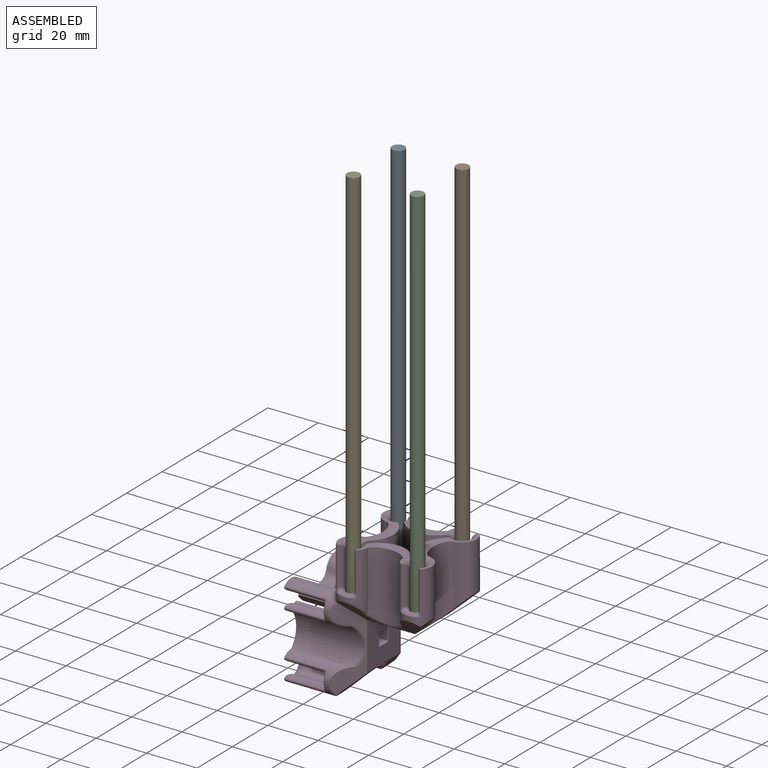
[diagram: assembled view]
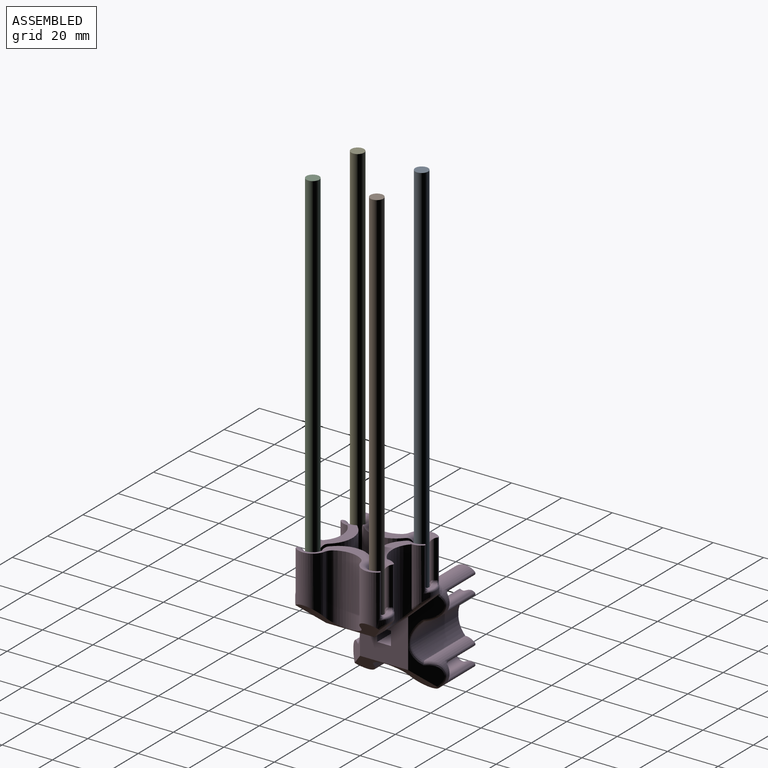
[diagram: assembled view, second angle]
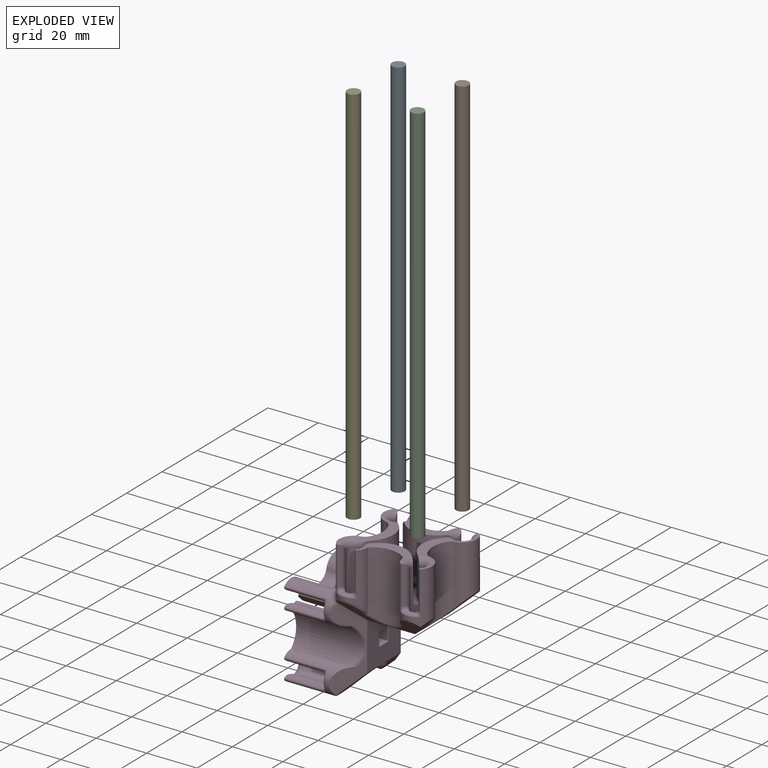
[diagram: exploded view]
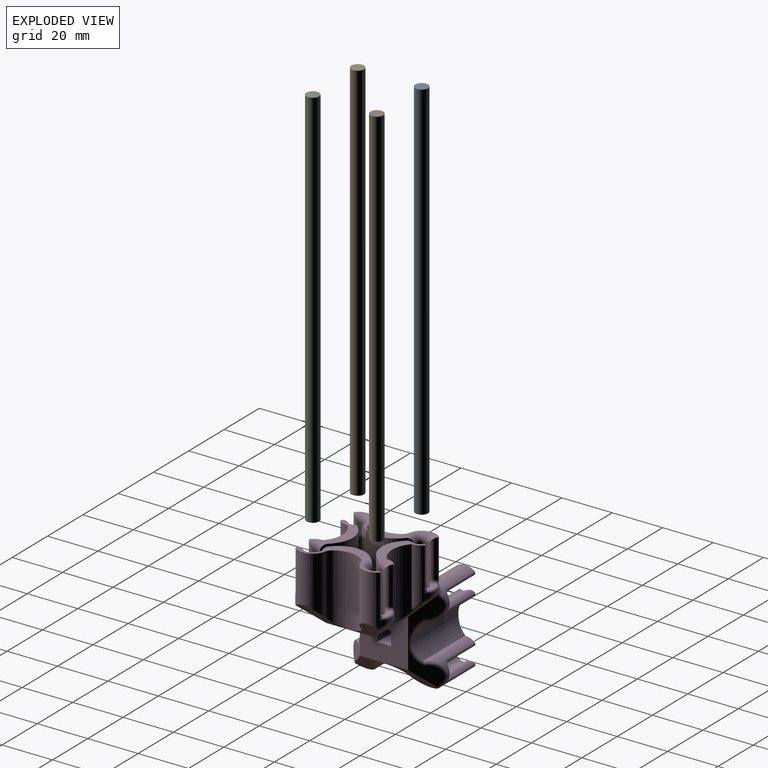
[diagram: exploded view, second angle]
ASSEMBLY  parts=5 mates=4
PART A: 3 faces, bbox 5.1x5.1x152.4 mm
  f0: cylinder r=2.54mm len=152.4mm, axis (0,0,-1), area 2432.2mm2, adj f1,f2
  f1: plane 5.08x5.08mm, normal (0,0,1), area 20.3mm2, adj f0
  f2: plane 5.08x5.08mm, normal (0,0,-1), area 20.3mm2, adj f0
PART B: same geometry as A
PART C: same geometry as A
PART D: 315 faces, bbox 60.8x40.9x60.8 mm
  f0: plane 33.44x12.62mm, normal (0,0,1), area 78.4mm2, adj f17,f18,f21,f40,f41,f69,f70,f71
  f1: plane 18.6x10.92mm, normal (0,0,1), area 69.1mm2, adj f16,f20,f21,f42,f43,f66,f67,f68
  f2: plane 18.6x10.92mm, normal (0,0,1), area 69.1mm2, adj f14,f18,f19,f38,f39,f72,f73,f74
  f3: plane 4.21x1.52mm, normal (0,0,1), area 4.4mm2, adj f177,f217,f282,f283,f287,f288
  f4: plane 4.21x1.52mm, normal (0,0,1), area 4.4mm2, adj f178,f216,f251,f252,f292,f293
  f5: plane 4.21x1.52mm, normal (0,0,1), area 4.4mm2, adj f179,f215,f297,f298,f302,f303
  f6: plane 4.21x1.52mm, normal (0,0,1), area 4.4mm2, adj f180,f218,f307,f308,f312,f313
  f7: plane 10.16x5.46mm, normal (1,0,0), area 45.7mm2, adj f9,f13,f54,f55,f57,f58,f60
  f8: plane 10.16x5.46mm, normal (-1,0,0), area 45.7mm2, adj f9,f11,f54,f55,f56,f58,f59
  f9: plane 10.16x5.46mm, normal (0,-1,0), area 35.9mm2, adj f7,f8,f10,f54,f58,f59,f60
  f10: plane 1.18x0.06mm, normal (0,0,1), area 0.1mm2, adj f9,f58
  f11: plane 1.18x0.06mm, normal (0,0,1), area 0.1mm2, adj f8,f58
  f12: plane 1.18x0.06mm, normal (0,0,1), area 0.1mm2, adj f55,f58
  f13: plane 1.18x0.06mm, normal (0,0,1), area 0.1mm2, adj f7,f58
  f14: cylinder r=5.71mm len=22.9mm, axis (0,0,-1), area 319.3mm2, adj f2,f19,f34,f37,f38,f157,f159,f161
  f15: cylinder r=10.16mm len=21.62mm, axis (0,0,-1), area 247.3mm2, adj f34,f156,f159,f165
  f16: cylinder r=5.71mm len=22.9mm, axis (0,0,-1), area 319.3mm2, adj f1,f20,f34,f43,f44,f158,f165,f167
  f17: cylinder r=10.16mm len=25.91mm, axis (0,0,-1), area 296.4mm2, adj f0,f53,f171,f172
  f18: cylinder r=5.71mm len=23.49mm, axis (0,0,-1), area 344mm2, adj f0,f2,f19,f39,f40,f53,f171,f180
  f19: cylinder r=10.16mm len=26.96mm, axis (0,0,-1), area 399mm2, adj f2,f14,f18,f183,f185,f187
  f20: cylinder r=10.16mm len=26.96mm, axis (0,0,-1), area 398.9mm2, adj f1,f16,f21,f189,f190
  f21: cylinder r=5.71mm len=25.43mm, axis (0,0,-1), area 356.4mm2, adj f0,f1,f20,f35,f41,f42,f53,f172
  f22: plane 15.22x0.5mm, normal (-0.77,0.64,0), area 10mm2, adj f40,f48,f232,f311,f312
  f23: cylinder r=2.67mm len=17.78mm, axis (0,0,-1), area 178.3mm2, adj f47,f48,f61,f71,f72,f207,f218,f226
  f24: plane 15.22x0.5mm, normal (0.77,0.64,0), area 10mm2, adj f39,f47,f226,f306,f307
  f25: plane 15.22x0.5mm, normal (-0.77,0.64,0), area 10mm2, adj f38,f46,f224,f301,f302
  f26: cylinder r=2.67mm len=17.78mm, axis (0,0,-1), area 178.3mm2, adj f45,f46,f62,f74,f75,f209,f215,f224
  f27: plane 15.22x0.5mm, normal (0.77,0.64,0), area 10mm2, adj f37,f45,f234,f296,f297
  f28: plane 15.22x0.5mm, normal (0.77,-0.64,0), area 10mm2, adj f44,f52,f231,f291,f292
  f29: cylinder r=2.67mm len=17.78mm, axis (0,0,-1), area 178.3mm2, adj f51,f52,f63,f66,f77,f205,f216,f225
  f30: plane 15.22x0.5mm, normal (-0.77,-0.64,0), area 10mm2, adj f43,f51,f225,f252,f253
  f31: plane 15.22x0.5mm, normal (0.77,-0.64,0), area 10mm2, adj f42,f50,f223,f281,f282
  f32: cylinder r=2.67mm len=17.78mm, axis (0,0,-1), area 178.3mm2, adj f49,f50,f64,f68,f69,f203,f217,f223
  f33: plane 15.22x0.5mm, normal (-0.77,-0.64,0), area 10mm2, adj f41,f49,f233,f286,f287
  f34: plane 33.44x12.62mm, normal (0,0,1), area 78.4mm2, adj f14,f15,f16,f37,f44,f75,f76,f77
  f35: plane 33.2x8.89mm, normal (0,-0.71,-0.71), area 149.4mm2, adj f21,f53,f54,f113,f189,f190,f192
  f36: plane 32.72x8.52mm, normal (0,0.71,-0.71), area 137.4mm2, adj f53,f54,f114,f183,f185,f187,f188
  f37: cylinder r=0.76mm len=17.27mm, axis (0,0,-1), area 21.1mm2, adj f14,f27,f34,f234,f295
  f38: cylinder r=0.76mm len=17.27mm, axis (0,0,-1), area 21.1mm2, adj f2,f14,f25,f224,f300
  f39: cylinder r=0.76mm len=17.27mm, axis (0,0,-1), area 21.1mm2, adj f2,f18,f24,f226,f305
  f40: cylinder r=0.76mm len=17.27mm, axis (0,0,-1), area 21.1mm2, adj f0,f18,f22,f232,f310
  f41: cylinder r=0.76mm len=17.27mm, axis (0,0,-1), area 21.1mm2, adj f0,f21,f33,f233,f285
  f42: cylinder r=0.76mm len=17.27mm, axis (0,0,-1), area 21.1mm2, adj f1,f21,f31,f223,f280
  f43: cylinder r=0.76mm len=17.27mm, axis (0,0,-1), area 21.1mm2, adj f1,f16,f30,f225,f254
  f44: cylinder r=0.76mm len=17.27mm, axis (0,0,-1), area 21.1mm2, adj f16,f28,f34,f231,f290
  f45: cylinder r=2.03mm len=17.33mm, axis (0,0,-1), area 33.5mm2, adj f26,f27,f234,f298,f299
  f46: cylinder r=2.03mm len=17.33mm, axis (0,0,-1), area 33.5mm2, adj f25,f26,f224,f303,f304
  f47: cylinder r=2.03mm len=17.33mm, axis (0,0,-1), area 33.5mm2, adj f23,f24,f226,f308,f309
  f48: cylinder r=2.03mm len=17.33mm, axis (0,0,-1), area 33.5mm2, adj f22,f23,f232,f313,f314
  f49: cylinder r=2.03mm len=17.33mm, axis (0,0,-1), area 33.5mm2, adj f32,f33,f233,f288,f289
  f50: cylinder r=2.03mm len=17.33mm, axis (0,0,-1), area 33.5mm2, adj f31,f32,f223,f283,f284
  f51: cylinder r=2.03mm len=17.33mm, axis (0,0,-1), area 33.5mm2, adj f29,f30,f225,f250,f251
  f52: cylinder r=2.03mm len=17.33mm, axis (0,0,-1), area 33.5mm2, adj f28,f29,f231,f293,f294
  f53: plane 36.36x12.03mm, normal (0.71,0,-0.71), area 171.6mm2, adj f17,f18,f21,f35,f36,f54,f171,f172
  f54: plane 19.05x19.05mm, normal (0,0,-1), area 333.1mm2, adj f7,f8,f9,f35,f36,f53,f55,f132
  f55: plane 10.16x5.46mm, normal (0,1,0), area 55.5mm2, adj f7,f8,f12,f54,f56,f57
  f56: plane 2.14x2.14mm, normal (0,0,-1), area 1.4mm2, adj f8,f55,f58
  f57: plane 2.14x2.14mm, normal (0,0,-1), area 1.4mm2, adj f7,f55,f58
  f58: cylinder r=2.79mm len=5.78mm, axis (0,0,-1), area 50.3mm2, adj f7,f8,f9,f10,f11,f12,f13,f56
  f59: plane 2.14x2.14mm, normal (0,0,-1), area 1.4mm2, adj f8,f9,f58
  f60: plane 2.14x2.14mm, normal (0,0,-1), area 1.4mm2, adj f7,f9,f58
  f61: plane 5.33x5.33mm, normal (0,0,1), area 22.3mm2, adj f23
  f62: plane 5.33x5.33mm, normal (0,0,1), area 22.3mm2, adj f26
  f63: plane 5.33x5.33mm, normal (0,0,1), area 22.3mm2, adj f29
  f64: plane 5.33x5.33mm, normal (0,0,1), area 22.3mm2, adj f32
  f65: plane 16.33x16.33mm, normal (0,0,1), area 89.9mm2, adj f58,f204,f206,f208,f210
  f66: plane 15.61x2.91mm, normal (-0.71,0.71,0), area 59.7mm2, adj f1,f29,f67,f205,f225
  f67: cylinder r=10.53mm len=15.49mm, axis (0,0,1), area 256.3mm2, adj f1,f66,f68,f204
  f68: plane 15.61x2.91mm, normal (0.71,0.71,0), area 59.7mm2, adj f1,f32,f67,f203,f223
  f69: plane 15.61x2.91mm, normal (-0.71,-0.71,0), area 59.7mm2, adj f0,f32,f70,f203,f233
  f70: cylinder r=10.53mm len=15.49mm, axis (0,0,1), area 256.3mm2, adj f0,f69,f71,f206
  f71: plane 15.61x2.91mm, normal (-0.71,0.71,0), area 59.7mm2, adj f0,f23,f70,f207,f232
  f72: plane 15.61x2.91mm, normal (0.71,-0.71,0), area 59.7mm2, adj f2,f23,f73,f207,f226
  f73: cylinder r=10.53mm len=15.49mm, axis (0,0,1), area 256.3mm2, adj f2,f72,f74,f210
  f74: plane 15.61x2.91mm, normal (-0.71,-0.71,0), area 59.7mm2, adj f2,f26,f73,f209,f224
  f75: plane 15.61x2.91mm, normal (0.71,0.71,0), area 59.7mm2, adj f26,f34,f76,f209,f234
  f76: cylinder r=10.53mm len=15.49mm, axis (0,0,1), area 256.3mm2, adj f34,f75,f77,f208
  f77: plane 15.61x2.91mm, normal (0.71,-0.71,0), area 59.7mm2, adj f29,f34,f76,f205,f231
  f78: plane 33.44x12.62mm, normal (-1,0,0), area 78.4mm2, adj f95,f96,f99,f118,f119,f147,f148,f149
  f79: plane 18.6x10.92mm, normal (-1,0,0), area 69.1mm2, adj f94,f98,f99,f120,f121,f144,f145,f146
  f80: plane 18.6x10.92mm, normal (-1,0,0), area 69.1mm2, adj f92,f96,f97,f116,f117,f150,f151,f152
  f81: plane 4.21x1.52mm, normal (-1,0,0), area 4.4mm2, adj f173,f213,f246,f247,f257,f258
  f82: plane 4.21x1.52mm, normal (-1,0,0), area 4.4mm2, adj f174,f212,f262,f263,f267,f268
  f83: plane 4.21x1.52mm, normal (-1,0,0), area 4.4mm2, adj f175,f211,f241,f242,f272,f273
  f84: plane 4.21x1.52mm, normal (-1,0,0), area 4.4mm2, adj f176,f214,f236,f237,f277,f278
  f85: plane 10.16x5.46mm, normal (0,0,-1), area 45.7mm2, adj f87,f91,f132,f133,f135,f136,f138
  f86: plane 10.16x5.46mm, normal (0,0,1), area 45.7mm2, adj f87,f89,f132,f133,f134,f136,f137
  f87: plane 10.16x5.46mm, normal (0,-1,0), area 35.9mm2, adj f85,f86,f88,f132,f136,f137,f138
  f88: plane 1.18x0.06mm, normal (-1,0,0), area 0.1mm2, adj f87,f136
  f89: plane 1.18x0.06mm, normal (-1,0,0), area 0.1mm2, adj f86,f136
  f90: plane 1.18x0.06mm, normal (-1,0,0), area 0.1mm2, adj f133,f136
  f91: plane 1.18x0.06mm, normal (-1,0,0), area 0.1mm2, adj f85,f136
  f92: cylinder r=5.71mm len=22.9mm, axis (1,0,0), area 319.3mm2, adj f80,f97,f112,f115,f116,f157,f160,f162
  f93: cylinder r=10.16mm len=21.62mm, axis (1,0,0), area 247.3mm2, adj f112,f156,f160,f164
  f94: cylinder r=5.71mm len=22.9mm, axis (1,0,0), area 319.3mm2, adj f79,f98,f112,f121,f122,f158,f164,f166
  f95: cylinder r=10.16mm len=25.91mm, axis (1,0,0), area 296.4mm2, adj f78,f131,f169,f170
  f96: cylinder r=5.71mm len=23.49mm, axis (1,0,0), area 344mm2, adj f78,f80,f97,f117,f118,f131,f169,f176
  f97: cylinder r=10.16mm len=26.96mm, axis (1,0,0), area 399mm2, adj f80,f92,f96,f181,f182,f184
  f98: cylinder r=10.16mm len=26.96mm, axis (1,0,0), area 398.9mm2, adj f79,f94,f99,f191,f193
  f99: cylinder r=5.71mm len=25.43mm, axis (1,0,0), area 356.4mm2, adj f78,f79,f98,f113,f119,f120,f131,f170
  f100: plane 15.22x0.5mm, normal (0,0.64,0.77), area 10mm2, adj f118,f126,f228,f237,f238
  f101: cylinder r=2.67mm len=17.78mm, axis (1,0,0), area 178.3mm2, adj f125,f126,f139,f149,f150,f199,f214,f222
  f102: plane 15.22x0.5mm, normal (0,0.64,-0.77), area 10mm2, adj f117,f125,f222,f276,f277
  f103: plane 15.22x0.5mm, normal (0,0.64,0.77), area 10mm2, adj f116,f124,f220,f242,f243
  f104: cylinder r=2.67mm len=17.78mm, axis (1,0,0), area 178.3mm2, adj f123,f124,f140,f152,f153,f201,f211,f220
  f105: plane 15.22x0.5mm, normal (0,0.64,-0.77), area 10mm2, adj f115,f123,f230,f271,f272
  f106: plane 15.22x0.5mm, normal (0,-0.64,-0.77), area 10mm2, adj f122,f130,f227,f266,f267
  f107: cylinder r=2.67mm len=17.78mm, axis (1,0,0), area 178.3mm2, adj f129,f130,f141,f144,f155,f197,f212,f221
  f108: plane 15.22x0.5mm, normal (0,-0.64,0.77), area 10mm2, adj f121,f129,f221,f261,f262
  f109: plane 15.22x0.5mm, normal (0,-0.64,-0.77), area 10mm2, adj f120,f128,f219,f256,f257
  f110: cylinder r=2.67mm len=17.78mm, axis (1,0,0), area 178.3mm2, adj f127,f128,f142,f146,f147,f195,f213,f219
  f111: plane 15.22x0.5mm, normal (0,-0.64,0.77), area 10mm2, adj f119,f127,f229,f247,f248
  f112: plane 33.44x12.62mm, normal (-1,0,0), area 78.4mm2, adj f92,f93,f94,f115,f122,f153,f154,f155
  f113: plane 33.2x8.89mm, normal (0.71,-0.71,0), area 149.4mm2, adj f35,f99,f131,f132,f191,f193,f194
  f114: plane 32.72x8.52mm, normal (0.71,0.71,0), area 137.4mm2, adj f36,f131,f132,f181,f182,f184,f186
  f115: cylinder r=0.76mm len=17.27mm, axis (1,0,0), area 21.1mm2, adj f92,f105,f112,f230,f270
  f116: cylinder r=0.76mm len=17.27mm, axis (1,0,0), area 21.1mm2, adj f80,f92,f103,f220,f244
  f117: cylinder r=0.76mm len=17.27mm, axis (1,0,0), area 21.1mm2, adj f80,f96,f102,f222,f275
  f118: cylinder r=0.76mm len=17.27mm, axis (1,0,0), area 21.1mm2, adj f78,f96,f100,f228,f239
  f119: cylinder r=0.76mm len=17.27mm, axis (1,0,0), area 21.1mm2, adj f78,f99,f111,f229,f249
  f120: cylinder r=0.76mm len=17.27mm, axis (1,0,0), area 21.1mm2, adj f79,f99,f109,f219,f255
  f121: cylinder r=0.76mm len=17.27mm, axis (1,0,0), area 21.1mm2, adj f79,f94,f108,f221,f260
  f122: cylinder r=0.76mm len=17.27mm, axis (1,0,0), area 21.1mm2, adj f94,f106,f112,f227,f265
  f123: cylinder r=2.03mm len=17.33mm, axis (1,0,0), area 33.5mm2, adj f104,f105,f230,f273,f274
  f124: cylinder r=2.03mm len=17.33mm, axis (1,0,0), area 33.5mm2, adj f103,f104,f220,f240,f241
  f125: cylinder r=2.03mm len=17.33mm, axis (1,0,0), area 33.5mm2, adj f101,f102,f222,f278,f279
  f126: cylinder r=2.03mm len=17.33mm, axis (1,0,0), area 33.5mm2, adj f100,f101,f228,f235,f236
  f127: cylinder r=2.03mm len=17.33mm, axis (1,0,0), area 33.5mm2, adj f110,f111,f229,f245,f246
  f128: cylinder r=2.03mm len=17.33mm, axis (1,0,0), area 33.5mm2, adj f109,f110,f219,f258,f259
  f129: cylinder r=2.03mm len=17.33mm, axis (1,0,0), area 33.5mm2, adj f107,f108,f221,f263,f264
  f130: cylinder r=2.03mm len=17.33mm, axis (1,0,0), area 33.5mm2, adj f106,f107,f227,f268,f269
  f131: plane 36.36x12.03mm, normal (0.71,0,-0.71), area 171.6mm2, adj f95,f96,f99,f113,f114,f132,f169,f170
  f132: plane 19.05x19.05mm, normal (1,0,0), area 333.1mm2, adj f54,f85,f86,f87,f113,f114,f131,f133
  f133: plane 10.16x5.46mm, normal (0,1,0), area 55.5mm2, adj f85,f86,f90,f132,f134,f135
  f134: plane 2.14x2.14mm, normal (1,0,0), area 1.4mm2, adj f86,f133,f136
  f135: plane 2.14x2.14mm, normal (1,0,0), area 1.4mm2, adj f85,f133,f136
  f136: cylinder r=2.79mm len=5.78mm, axis (1,0,0), area 50.3mm2, adj f85,f86,f87,f88,f89,f90,f91,f134
  f137: plane 2.14x2.14mm, normal (1,0,0), area 1.4mm2, adj f86,f87,f136
  f138: plane 2.14x2.14mm, normal (1,0,0), area 1.4mm2, adj f85,f87,f136
  f139: plane 5.33x5.33mm, normal (-1,0,0), area 22.3mm2, adj f101
  f140: plane 5.33x5.33mm, normal (-1,0,0), area 22.3mm2, adj f104
  f141: plane 5.33x5.33mm, normal (-1,0,0), area 22.3mm2, adj f107
  f142: plane 5.33x5.33mm, normal (-1,0,0), area 22.3mm2, adj f110
  f143: plane 16.33x16.33mm, normal (-1,0,0), area 89.9mm2, adj f136,f196,f198,f200,f202
  f144: plane 15.61x2.91mm, normal (0,0.71,0.71), area 59.7mm2, adj f79,f107,f145,f197,f221
  f145: cylinder r=10.53mm len=15.49mm, axis (-1,0,0), area 256.3mm2, adj f79,f144,f146,f196
  f146: plane 15.61x2.91mm, normal (0,0.71,-0.71), area 59.7mm2, adj f79,f110,f145,f195,f219
  f147: plane 15.61x2.91mm, normal (0,-0.71,0.71), area 59.7mm2, adj f78,f110,f148,f195,f229
  f148: cylinder r=10.53mm len=15.49mm, axis (-1,0,0), area 256.3mm2, adj f78,f147,f149,f198
  f149: plane 15.61x2.91mm, normal (0,0.71,0.71), area 59.7mm2, adj f78,f101,f148,f199,f228
  f150: plane 15.61x2.91mm, normal (0,-0.71,-0.71), area 59.7mm2, adj f80,f101,f151,f199,f222
  f151: cylinder r=10.53mm len=15.49mm, axis (-1,0,0), area 256.3mm2, adj f80,f150,f152,f202
  f152: plane 15.61x2.91mm, normal (0,-0.71,0.71), area 59.7mm2, adj f80,f104,f151,f201,f220
  f153: plane 15.61x2.91mm, normal (0,0.71,-0.71), area 59.7mm2, adj f104,f112,f154,f201,f230
  f154: cylinder r=10.53mm len=15.49mm, axis (-1,0,0), area 256.3mm2, adj f112,f153,f155,f200
  f155: plane 15.61x2.91mm, normal (0,-0.71,-0.71), area 59.7mm2, adj f107,f112,f154,f197,f227
  f156: bspline ~14.79x6.03mm, area 94.1mm2, adj f15,f93,f161,f162,f166,f167
  f157: bspline ~10.5x7.32mm, area 42.1mm2, adj f14,f92,f163,f186,f188
  f158: bspline ~10.5x7.32mm, area 42.1mm2, adj f16,f94,f168,f192,f194
  f159: cylinder r=3.81mm len=21.62mm, axis (0,0,-1), area 65.5mm2, adj f14,f15,f34,f161
  f160: cylinder r=3.81mm len=21.62mm, axis (1,0,0), area 65.5mm2, adj f92,f93,f112,f162
  f161: bspline ~4.32x2.88mm, area 6.2mm2, adj f14,f156,f159,f163
  f162: bspline ~4.58x2.89mm, area 6.2mm2, adj f92,f156,f160,f163
  f163: bspline ~2.27x2.27mm, area 0.7mm2, adj f157,f161,f162
  f164: cylinder r=3.81mm len=21.62mm, axis (1,0,0), area 65.5mm2, adj f93,f94,f112,f166
  f165: cylinder r=3.81mm len=21.62mm, axis (0,0,-1), area 65.5mm2, adj f15,f16,f34,f167
  f166: bspline ~4.32x2.88mm, area 6.2mm2, adj f94,f156,f164,f168
  f167: bspline ~4.58x2.89mm, area 6.2mm2, adj f16,f156,f165,f168
  f168: bspline ~2.01x2.01mm, area 0.7mm2, adj f158,f166,f167
  f169: cylinder r=3.81mm len=25.91mm, axis (1,0,0), area 74.9mm2, adj f78,f95,f96,f131
  f170: cylinder r=3.81mm len=25.91mm, axis (1,0,0), area 74.9mm2, adj f78,f95,f99,f131
  f171: cylinder r=3.81mm len=25.91mm, axis (0,0,-1), area 74.9mm2, adj f0,f17,f18,f53
  f172: cylinder r=3.81mm len=25.91mm, axis (0,0,-1), area 74.9mm2, adj f0,f17,f21,f53
  f173: torus R=4.95mm, axis (1,0,0), area 8mm2, adj f81,f99,f248,f249,f255,f256
  f174: torus R=4.95mm, axis (1,0,0), area 8mm2, adj f82,f94,f260,f261,f265,f266
  f175: torus R=4.95mm, axis (1,0,0), area 8mm2, adj f83,f92,f243,f244,f270,f271
  f176: torus R=4.95mm, axis (1,0,0), area 8mm2, adj f84,f96,f238,f239,f275,f276
  f177: torus R=4.95mm, axis (0,0,-1), area 8mm2, adj f3,f21,f280,f281,f285,f286
  f178: torus R=4.95mm, axis (0,0,-1), area 8mm2, adj f4,f16,f253,f254,f290,f291
  f179: torus R=4.95mm, axis (0,0,-1), area 8mm2, adj f5,f14,f295,f296,f300,f301
  f180: torus R=4.95mm, axis (0,0,-1), area 8mm2, adj f6,f18,f305,f306,f310,f311
  f181: bspline ~10.87x6.71mm, area 20mm2, adj f96,f97,f114,f131,f182
  f182: bspline ~16.57x4.45mm, area 21.2mm2, adj f97,f114,f181,f184
  f183: bspline ~10.87x6.71mm, area 20mm2, adj f18,f19,f36,f53,f185
  f184: bspline ~10.02x6.71mm, area 18.2mm2, adj f92,f97,f114,f182,f186
  f185: bspline ~16.57x4.45mm, area 21.2mm2, adj f19,f36,f183,f187
  f186: bspline ~3.12x2.16mm, area 2mm2, adj f114,f157,f184,f188
  f187: bspline ~10.02x6.71mm, area 18.2mm2, adj f14,f19,f36,f185,f188
  f188: bspline ~2.65x1.93mm, area 2mm2, adj f36,f157,f186,f187
  f189: bspline ~16.14x4.45mm, area 19.7mm2, adj f20,f21,f35,f190
  f190: bspline ~10.02x6.71mm, area 18.2mm2, adj f16,f20,f35,f189,f192
  f191: bspline ~16.14x4.45mm, area 19.7mm2, adj f98,f99,f113,f193
  f192: bspline ~3.12x2.16mm, area 2mm2, adj f35,f158,f190,f194
  f193: bspline ~10.02x6.71mm, area 18.2mm2, adj f94,f98,f113,f191,f194
  f194: bspline ~2.65x1.93mm, area 2mm2, adj f113,f158,f192,f193
  f195: cylinder r=1.02mm len=4.23mm, axis (0,0.71,0.71), area 12.3mm2, adj f110,f146,f147,f196,f198
  f196: torus R=11.55mm, axis (1,0,0), area 27.3mm2, adj f143,f145,f195,f197
  f197: cylinder r=1.02mm len=4.23mm, axis (0,-0.71,0.71), area 12.3mm2, adj f107,f144,f155,f196,f200
  f198: torus R=11.55mm, axis (1,0,0), area 27.3mm2, adj f143,f148,f195,f199
  f199: cylinder r=1.02mm len=4.23mm, axis (0,-0.71,0.71), area 12.3mm2, adj f101,f149,f150,f198,f202
  f200: torus R=11.55mm, axis (1,0,0), area 27.3mm2, adj f143,f154,f197,f201
  f201: cylinder r=1.02mm len=4.23mm, axis (0,0.71,0.71), area 12.3mm2, adj f104,f152,f153,f200,f202
  f202: torus R=11.55mm, axis (1,0,0), area 27.3mm2, adj f143,f151,f199,f201
  f203: cylinder r=1.02mm len=4.23mm, axis (-0.71,0.71,0), area 12.3mm2, adj f32,f68,f69,f204,f206
  f204: torus R=11.55mm, axis (0,0,-1), area 27.3mm2, adj f65,f67,f203,f205
  f205: cylinder r=1.02mm len=4.23mm, axis (-0.71,-0.71,0), area 12.3mm2, adj f29,f66,f77,f204,f208
  f206: torus R=11.55mm, axis (0,0,-1), area 27.3mm2, adj f65,f70,f203,f207
  f207: cylinder r=1.02mm len=4.23mm, axis (-0.71,-0.71,0), area 12.3mm2, adj f23,f71,f72,f206,f210
  f208: torus R=11.55mm, axis (0,0,-1), area 27.3mm2, adj f65,f76,f205,f209
  f209: cylinder r=1.02mm len=4.23mm, axis (-0.71,0.71,0), area 12.3mm2, adj f26,f74,f75,f208,f210
  f210: torus R=11.55mm, axis (0,0,-1), area 27.3mm2, adj f65,f73,f207,f209
  f211: torus R=3.68mm, axis (1,0,0), area 5.5mm2, adj f83,f104,f240,f274
  f212: torus R=3.68mm, axis (1,0,0), area 5.5mm2, adj f82,f107,f264,f269
  f213: torus R=3.68mm, axis (1,0,0), area 5.5mm2, adj f81,f110,f245,f259
  f214: torus R=3.68mm, axis (1,0,0), area 5.5mm2, adj f84,f101,f235,f279
  f215: torus R=3.68mm, axis (0,0,-1), area 5.5mm2, adj f5,f26,f299,f304
  f216: torus R=3.68mm, axis (0,0,-1), area 5.5mm2, adj f4,f29,f250,f294
  f217: torus R=3.68mm, axis (0,0,-1), area 5.5mm2, adj f3,f32,f284,f289
  f218: torus R=3.68mm, axis (0,0,-1), area 5.5mm2, adj f6,f23,f309,f314
  f219: torus R=5.21mm, axis (-1,0,0), area 18.4mm2, adj f79,f109,f110,f120,f128,f146
  f220: torus R=5.21mm, axis (-1,0,0), area 18.4mm2, adj f80,f103,f104,f116,f124,f152
  f221: torus R=5.21mm, axis (-1,0,0), area 18.4mm2, adj f79,f107,f108,f121,f129,f144
  f222: torus R=5.21mm, axis (-1,0,0), area 18.4mm2, adj f80,f101,f102,f117,f125,f150
  f223: torus R=5.21mm, axis (0,0,1), area 18.4mm2, adj f1,f31,f32,f42,f50,f68
  f224: torus R=5.21mm, axis (0,0,1), area 18.4mm2, adj f2,f25,f26,f38,f46,f74
  f225: torus R=5.21mm, axis (0,0,1), area 18.4mm2, adj f1,f29,f30,f43,f51,f66
  f226: torus R=5.21mm, axis (0,0,1), area 18.4mm2, adj f2,f23,f24,f39,f47,f72
  f227: torus R=5.21mm, axis (-1,0,0), area 40.9mm2, adj f106,f107,f112,f122,f130,f155
  f228: torus R=5.21mm, axis (-1,0,0), area 40.9mm2, adj f78,f100,f101,f118,f126,f149
  f229: torus R=5.21mm, axis (-1,0,0), area 40.9mm2, adj f78,f110,f111,f119,f127,f147
  f230: torus R=5.21mm, axis (-1,0,0), area 40.9mm2, adj f104,f105,f112,f115,f123,f153
  f231: torus R=5.21mm, axis (0,0,1), area 40.9mm2, adj f28,f29,f34,f44,f52,f77
  f232: torus R=5.21mm, axis (0,0,1), area 40.9mm2, adj f0,f22,f23,f40,f48,f71
  f233: torus R=5.21mm, axis (0,0,1), area 40.9mm2, adj f0,f32,f33,f41,f49,f69
  f234: torus R=5.21mm, axis (0,0,1), area 40.9mm2, adj f26,f27,f34,f37,f45,f75
  f235: bspline ~2.49x2.29mm, area 1.6mm2, adj f126,f214,f236
  f236: torus R=3.3mm, axis (1,0,0), area 1.1mm2, adj f84,f126,f235,f237
  f237: cylinder r=1.27mm len=1.33mm, axis (0,0.77,-0.64), area 1.1mm2, adj f84,f100,f236,f238
  f238: bspline ~1.31x1.26mm, area 0.1mm2, adj f100,f176,f237,f239
  f239: bspline ~2.27x2.03mm, area 1.2mm2, adj f118,f176,f238
  f240: bspline ~2.49x2.29mm, area 1.6mm2, adj f124,f211,f241
  f241: torus R=3.3mm, axis (1,0,0), area 1.1mm2, adj f83,f124,f240,f242
  f242: cylinder r=1.27mm len=1.33mm, axis (0,0.77,-0.64), area 1.1mm2, adj f83,f103,f241,f243
  f243: bspline ~1.31x1.26mm, area 0.1mm2, adj f103,f175,f242,f244
  f244: bspline ~2.27x2.03mm, area 1.2mm2, adj f116,f175,f243
  f245: bspline ~2.33x2.29mm, area 1.7mm2, adj f127,f213,f246
  f246: torus R=3.3mm, axis (1,0,0), area 1.1mm2, adj f81,f127,f245,f247
  f247: cylinder r=1.27mm len=1.33mm, axis (0,0.77,0.64), area 1.1mm2, adj f81,f111,f246,f248
  f248: bspline ~1.31x1.26mm, area 0.1mm2, adj f111,f173,f247,f249
  f249: bspline ~2.23x2.03mm, area 1.2mm2, adj f119,f173,f248
  f250: bspline ~2.38x2.29mm, area 1.6mm2, adj f51,f216,f251
  f251: torus R=3.3mm, axis (0,0,-1), area 1.1mm2, adj f4,f51,f250,f252
  f252: cylinder r=1.27mm len=1.33mm, axis (-0.64,0.77,0), area 1.1mm2, adj f4,f30,f251,f253
  f253: bspline ~1.31x1.26mm, area 0.1mm2, adj f30,f178,f252,f254
  f254: bspline ~2.27x2.03mm, area 1.2mm2, adj f43,f178,f253
  f255: bspline ~2.27x2.03mm, area 1.2mm2, adj f120,f173,f256
  f256: bspline ~1.31x1.26mm, area 0.1mm2, adj f109,f173,f255,f257
  f257: cylinder r=1.27mm len=1.33mm, axis (0,-0.77,0.64), area 1.1mm2, adj f81,f109,f256,f258
  f258: torus R=3.3mm, axis (1,0,0), area 1.1mm2, adj f81,f128,f257,f259
  f259: bspline ~2.33x2.29mm, area 1.6mm2, adj f128,f213,f258
  f260: bspline ~2.16x2.03mm, area 1.2mm2, adj f121,f174,f261
  f261: bspline ~1.31x1.26mm, area 0.1mm2, adj f108,f174,f260,f262
  f262: cylinder r=1.27mm len=1.33mm, axis (0,0.77,0.64), area 1.1mm2, adj f82,f108,f261,f263
  f263: torus R=3.3mm, axis (1,0,0), area 1.1mm2, adj f82,f129,f262,f264
  f264: bspline ~2.49x2.29mm, area 1.7mm2, adj f129,f212,f263
  f265: bspline ~2.27x2.03mm, area 1.2mm2, adj f122,f174,f266
  f266: bspline ~1.31x1.26mm, area 0.1mm2, adj f106,f174,f265,f267
  f267: cylinder r=1.27mm len=1.33mm, axis (0,-0.77,0.64), area 1.1mm2, adj f82,f106,f266,f268
  f268: torus R=3.3mm, axis (1,0,0), area 1.1mm2, adj f82,f130,f267,f269
  f269: bspline ~2.49x2.29mm, area 1.6mm2, adj f130,f212,f268
  f270: bspline ~2.16x2.03mm, area 1.2mm2, adj f115,f175,f271
  f271: bspline ~1.31x1.26mm, area 0.1mm2, adj f105,f175,f270,f272
  f272: cylinder r=1.27mm len=1.33mm, axis (0,-0.77,-0.64), area 1.1mm2, adj f83,f105,f271,f273
  f273: torus R=3.3mm, axis (1,0,0), area 1.1mm2, adj f83,f123,f272,f274
  f274: bspline ~2.38x2.29mm, area 1.7mm2, adj f123,f211,f273
  f275: bspline ~2.16x2.03mm, area 1.2mm2, adj f117,f176,f276
  f276: bspline ~1.31x1.26mm, area 0.1mm2, adj f102,f176,f275,f277
  f277: cylinder r=1.27mm len=1.33mm, axis (0,-0.77,-0.64), area 1.1mm2, adj f84,f102,f276,f278
  f278: torus R=3.3mm, axis (1,0,0), area 1.1mm2, adj f84,f125,f277,f279
  f279: bspline ~2.38x2.29mm, area 1.7mm2, adj f125,f214,f278
  f280: bspline ~2.16x2.03mm, area 1.2mm2, adj f42,f177,f281
  f281: bspline ~1.31x1.26mm, area 0.1mm2, adj f31,f177,f280,f282
  f282: cylinder r=1.27mm len=1.33mm, axis (-0.64,-0.77,0), area 1.1mm2, adj f3,f31,f281,f283
  f283: torus R=3.3mm, axis (0,0,-1), area 1.1mm2, adj f3,f50,f282,f284
  f284: bspline ~2.33x2.29mm, area 1.7mm2, adj f50,f217,f283
  f285: bspline ~2.27x2.03mm, area 1.2mm2, adj f41,f177,f286
  f286: bspline ~1.31x1.26mm, area 0.1mm2, adj f33,f177,f285,f287
  f287: cylinder r=1.27mm len=1.33mm, axis (-0.64,0.77,0), area 1.1mm2, adj f3,f33,f286,f288
  f288: torus R=3.3mm, axis (0,0,-1), area 1.1mm2, adj f3,f49,f287,f289
  f289: bspline ~2.38x2.29mm, area 1.6mm2, adj f49,f217,f288
  f290: bspline ~2.23x2.03mm, area 1.2mm2, adj f44,f178,f291
  f291: bspline ~1.31x1.26mm, area 0.1mm2, adj f28,f178,f290,f292
  f292: cylinder r=1.27mm len=1.33mm, axis (-0.64,-0.77,0), area 1.1mm2, adj f4,f28,f291,f293
  f293: torus R=3.3mm, axis (0,0,-1), area 1.1mm2, adj f4,f52,f292,f294
  f294: bspline ~2.33x2.29mm, area 1.7mm2, adj f52,f216,f293
  f295: bspline ~2.27x2.03mm, area 1.2mm2, adj f37,f179,f296
  f296: bspline ~1.31x1.26mm, area 0.1mm2, adj f27,f179,f295,f297
  f297: cylinder r=1.27mm len=1.33mm, axis (0.64,-0.77,0), area 1.1mm2, adj f5,f27,f296,f298
  f298: torus R=3.3mm, axis (0,0,-1), area 1.1mm2, adj f5,f45,f297,f299
  f299: bspline ~2.49x2.29mm, area 1.6mm2, adj f45,f215,f298
  f300: bspline ~2.16x2.03mm, area 1.2mm2, adj f38,f179,f301
  f301: bspline ~1.31x1.26mm, area 0.1mm2, adj f25,f179,f300,f302
  f302: cylinder r=1.27mm len=1.33mm, axis (0.64,0.77,0), area 1.1mm2, adj f5,f25,f301,f303
  f303: torus R=3.3mm, axis (0,0,-1), area 1.1mm2, adj f5,f46,f302,f304
  f304: bspline ~2.49x2.29mm, area 1.7mm2, adj f46,f215,f303
  f305: bspline ~2.27x2.03mm, area 1.2mm2, adj f39,f180,f306
  f306: bspline ~1.31x1.26mm, area 0.1mm2, adj f24,f180,f305,f307
  f307: cylinder r=1.27mm len=1.33mm, axis (0.64,-0.77,0), area 1.1mm2, adj f6,f24,f306,f308
  f308: torus R=3.3mm, axis (0,0,-1), area 1.1mm2, adj f6,f47,f307,f309
  f309: bspline ~2.38x2.29mm, area 1.6mm2, adj f47,f218,f308
  f310: bspline ~2.16x2.03mm, area 1.2mm2, adj f40,f180,f311
  f311: bspline ~1.31x1.26mm, area 0.1mm2, adj f22,f180,f310,f312
  f312: cylinder r=1.27mm len=1.33mm, axis (0.64,0.77,0), area 1.1mm2, adj f6,f22,f311,f313
  f313: torus R=3.3mm, axis (0,0,-1), area 1.1mm2, adj f6,f48,f312,f314
  f314: bspline ~2.38x2.29mm, area 1.7mm2, adj f48,f218,f313
PART E: same geometry as A
PLACE A rot(axis=(1,0,0),180deg) t=(-25.17,12.84,179.21)mm
PLACE B rot(axis=(1,0,0),180deg) t=(0.23,12.84,179.21)mm
PLACE C rot(axis=(1,0,0),180deg) t=(0.23,-12.56,179.21)mm
PLACE D t=(-12.47,0.14,-3.67)mm fixed
PLACE E rot(axis=(1,0,0),180deg) t=(-25.17,-12.56,179.21)mm
MATE revolute E.f0 <-> D.f16  axis (0,0,-1) through (-25.17,-12.56,26.81)mm
MATE revolute B.f0 <-> D.f18  axis (0,0,-1) through (0.23,12.84,26.81)mm
MATE revolute D.f21 <-> C.f0  axis (0,0,1) through (0.23,-12.56,26.81)mm
MATE revolute D.f14 <-> A.f0  axis (0,0,1) through (-25.17,12.84,26.81)mm
